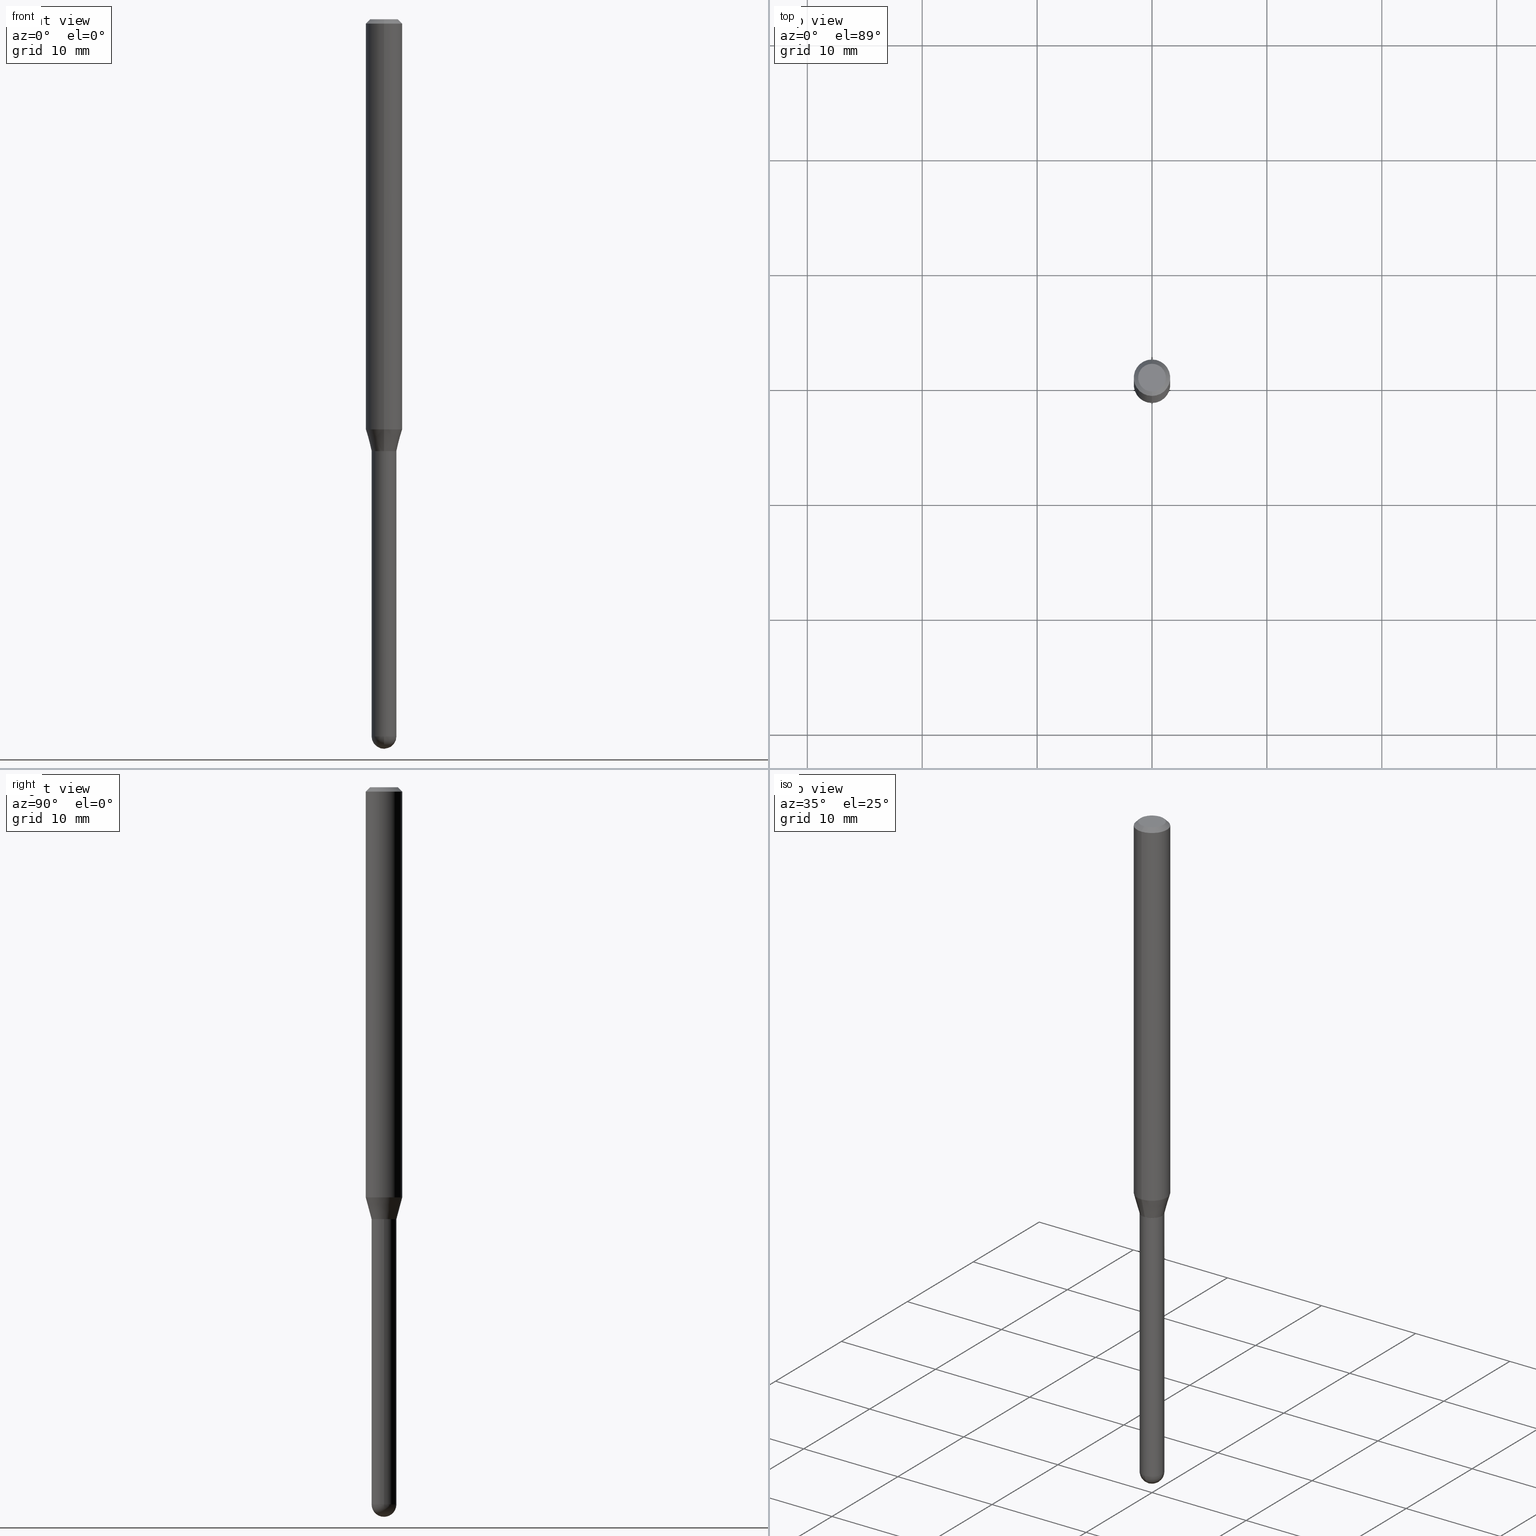
[diagram: canonical four-view strip — front | top / right | iso, engineering-drawing reading convention]
A machine part, canonical four-view strip (front | top / right | iso — engineering-drawing reading convention). The complete STEP part file that produces these views, byte-faithful:
ISO-10303-21;
HEADER;
FILE_DESCRIPTION (( 'STEP AP203' ),
    '1' );
FILE_NAME ('01574.STEP',
    '2024-03-07T19:41:08',
    ( '' ),
    ( '' ),
    'SwSTEP 2.0',
    'SolidWorks 2023',
    '' );
FILE_SCHEMA (( 'CONFIG_CONTROL_DESIGN' ));
ENDSEC;

DATA;
#1 = CALENDAR_DATE ( 2024, 7, 3 ) ;
#2 = EDGE_CURVE ( 'NONE', #276, #94, #167, .T. ) ;
#3 = DIRECTION ( 'NONE',  ( 2.445364733956634770E-29, -3.491630376197783750E-15, -1.000000000000000000 ) ) ;
#4 = EDGE_LOOP ( 'NONE', ( #482, #415, #421, #141 ) ) ;
#5 = CARTESIAN_POINT ( 'NONE',  ( -4.364351673553912750E-16, -0.06250000000000005551, -0.01499999999999979128 ) ) ;
#6 = EDGE_CURVE ( 'NONE', #419, #46, #57, .T. ) ;
#7 = AXIS2_PLACEMENT_3D ( 'NONE', #306, #487, #453 ) ;
#8 = CARTESIAN_POINT ( 'NONE',  ( 6.111854787098336202E-29, -8.731305721556052844E-15, -2.500000000000000000 ) ) ;
#9 = CARTESIAN_POINT ( 'NONE',  ( 0.04250000000000000999, -2.967759138016664042E-16, 2.072375129713273202E-30 ) ) ;
#10 = EDGE_CURVE ( 'NONE', #451, #46, #170, .T. ) ;
#11 = DIRECTION ( 'NONE',  ( -2.445468806185136597E-29, 3.491481338843145583E-15, 1.000000000000000000 ) ) ;
#12 = ORIENTED_EDGE ( 'NONE', *, *, #316, .T. ) ;
#13 = DIRECTION ( 'NONE',  ( -6.982962677686265922E-15, -1.000000000000000000, 6.504399984914913214E-15 ) ) ;
#14 = CIRCLE ( 'NONE', #232, 0.04249999999999964917 ) ;
#15 = FACE_OUTER_BOUND ( 'NONE', #228, .T. ) ;
#16 = EDGE_CURVE ( 'NONE', #396, #94, #508, .T. ) ;
#17 = ORIENTED_EDGE ( 'NONE', *, *, #10, .T. ) ;
#18 = PLANE ( 'NONE',  #275 ) ;
#19 = PRODUCT_DEFINITION_SHAPE ( 'NONE', 'NONE',  #384 ) ;
#20 = ORIENTED_EDGE ( 'NONE', *, *, #109, .T. ) ;
#21 = DIRECTION ( 'NONE',  ( 6.982962677686265922E-15, 1.000000000000000000, -6.427877632151214487E-15 ) ) ;
#22 = VECTOR ( 'NONE', #162, 39.37007874015748143 ) ;
#23 = AXIS2_PLACEMENT_3D ( 'NONE', #286, #474, #74 ) ;
#24 = ORIENTED_EDGE ( 'NONE', *, *, #55, .T. ) ;
#25 = APPROVAL_STATUS ( 'not_yet_approved' ) ;
#26 = EDGE_CURVE ( 'NONE', #370, #276, #463, .T. ) ;
#27 = EDGE_CURVE ( 'NONE', #419, #148, #91, .T. ) ;
#28 = ORIENTED_EDGE ( 'NONE', *, *, #259, .F. ) ;
#29 = FACE_OUTER_BOUND ( 'NONE', #49, .T. ) ;
#30 = ORIENTED_EDGE ( 'NONE', *, *, #134, .T. ) ;
#31 = CARTESIAN_POINT ( 'NONE',  ( 2.984279490192782363E-16, 0.04199999999999483313, -1.480000000000000648 ) ) ;
#32 = AXIS2_PLACEMENT_3D ( 'NONE', #344, #146, #312 ) ;
#33 = CIRCLE ( 'NONE', #144, 0.04250000000000000999 ) ;
#34 = FACE_OUTER_BOUND ( 'NONE', #345, .T. ) ;
#35 = CARTESIAN_POINT ( 'NONE',  ( 3.619293833154002365E-29, -5.167392381487854879E-15, -1.479999999999999982 ) ) ;
#36 = DIRECTION ( 'NONE',  ( -6.982962677686265922E-15, -1.000000000000000000, 3.491630376197783355E-15 ) ) ;
#37 = CARTESIAN_POINT ( 'NONE',  ( 3.730349362740885756E-16, 0.04249999999999504174, -1.480000000000000426 ) ) ;
#38 = COORDINATED_UNIVERSAL_TIME_OFFSET ( 5, 0, .BEHIND. ) ;
#39 = ORIENTED_EDGE ( 'NONE', *, *, #16, .F. ) ;
#40 = CIRCLE ( 'NONE', #196, 0.06250000000000000000 ) ;
#41 = LOCAL_TIME ( 14, 41, 8.000000000000000000, #468 ) ;
#42 = CARTESIAN_POINT ( 'NONE',  ( 3.019806626980419597E-16, 0.04249999999999991979, -1.483942909884055372E-16 ) ) ;
#43 = DIRECTION ( 'NONE',  ( -2.445468806185136597E-29, 3.491481338843145583E-15, 1.000000000000000000 ) ) ;
#44 = DIRECTION ( 'NONE',  ( -2.445364733956634770E-29, 3.491630376197783750E-15, 1.000000000000000000 ) ) ;
#45 = CARTESIAN_POINT ( 'NONE',  ( 3.668047100934954362E-31, -5.237445564296678780E-17, -0.01500000000000000812 ) ) ;
#46 = VERTEX_POINT ( 'NONE', #110 ) ;
#47 = VECTOR ( 'NONE', #447, 39.37007874015748143 ) ;
#48 = FACE_OUTER_BOUND ( 'NONE', #98, .T. ) ;
#49 = EDGE_LOOP ( 'NONE', ( #83, #188 ) ) ;
#50 = DIRECTION ( 'NONE',  ( 2.438088387897960049E-29, -3.491481338843145188E-15, -1.000000000000000000 ) ) ;
#51 = CARTESIAN_POINT ( 'NONE',  ( 3.840629472727447874E-16, 0.04749999999999999362, -1.747056831868805136E-16 ) ) ;
#52 = ORIENTED_EDGE ( 'NONE', *, *, #10, .F. ) ;
#53 = ORIENTED_EDGE ( 'NONE', *, *, #273, .T. ) ;
#54 = DIRECTION ( 'NONE',  ( -2.445364733956634770E-29, 3.491630376197783750E-15, 1.000000000000000000 ) ) ;
#55 = EDGE_CURVE ( 'NONE', #148, #189, #272, .T. ) ;
#56 = CONICAL_SURFACE ( 'NONE', #223, 0.06250000000000000000, 0.7853981633974483900 ) ;
#57 = LINE ( 'NONE', #456, #426 ) ;
#58 = ORIENTED_EDGE ( 'NONE', *, *, #316, .F. ) ;
#59 = FACE_OUTER_BOUND ( 'NONE', #4, .T. ) ;
#60 = ORIENTED_EDGE ( 'NONE', *, *, #318, .F. ) ;
#61 = APPLICATION_PROTOCOL_DEFINITION ( 'international standard', 'config_control_design', 1994, #428 ) ;
#62 = PERSON ( 'UNSPECIFIED', 'UNSPECIFIED', 'UNSPECIFIED', ('UNSPECIFIED'), ('UNSPECIFIED'), ('UNSPECIFIED') ) ;
#63 = AXIS2_PLACEMENT_3D ( 'NONE', #363, #119, #365 ) ;
#64 = ORIENTED_EDGE ( 'NONE', *, *, #208, .T. ) ;
#65 = ORIENTED_EDGE ( 'NONE', *, *, #2, .T. ) ;
#66 = DATE_AND_TIME ( #351, #294 ) ;
#67 = CARTESIAN_POINT ( 'NONE',  ( 6.006105134470961845E-29, -8.585520139103407419E-15, -2.457500000000000018 ) ) ;
#68 = CC_DESIGN_PERSON_AND_ORGANIZATION_ASSIGNMENT ( #236, #387, ( #384 ) ) ;
#69 = PERSON_AND_ORGANIZATION ( #62, #393 ) ;
#70 = CIRCLE ( 'NONE', #494, 0.04249999999999995448 ) ;
#71 = PERSON_AND_ORGANIZATION ( #62, #393 ) ;
#72 = FACE_OUTER_BOUND ( 'NONE', #117, .T. ) ;
#73 = CARTESIAN_POINT ( 'NONE',  ( 0.04250000000000000999, -7.170629799649109504E-15, -2.457500000000000018 ) ) ;
#74 = DIRECTION ( 'NONE',  ( -6.982962677686265922E-15, -1.000000000000000000, 3.483106191921935554E-15 ) ) ;
#75 = APPROVAL ( #323, 'UNSPECIFIED' ) ;
#76 = CARTESIAN_POINT ( 'NONE',  ( 3.619139806255819325E-29, -5.167612956772719382E-15, -1.479999999999999982 ) ) ;
#77 = CARTESIAN_POINT ( 'NONE',  ( 3.668047100934954362E-31, -5.237445564296678780E-17, -0.01500000000000000812 ) ) ;
#78 = DIRECTION ( 'NONE',  ( -2.445364733956634770E-29, 3.491630376197783750E-15, 1.000000000000000000 ) ) ;
#79 = DIRECTION ( 'NONE',  ( -2.445364733956634770E-29, 3.491630376197783750E-15, 1.000000000000000000 ) ) ;
#80 = CALENDAR_DATE ( 2024, 7, 3 ) ;
#81 = VECTOR ( 'NONE', #131, 39.37007874015748143 ) ;
#82 = CARTESIAN_POINT ( 'NONE',  ( 0.000000000000000000, 0.000000000000000000, 0.000000000000000000 ) ) ;
#83 = ORIENTED_EDGE ( 'NONE', *, *, #27, .T. ) ;
#84 = DIRECTION ( 'NONE',  ( -2.445468806185136597E-29, 3.491481338843145583E-15, 1.000000000000000000 ) ) ;
#85 = PERSON_AND_ORGANIZATION ( #62, #393 ) ;
#86 = DIRECTION ( 'NONE',  ( -1.000000000000000000, 7.105427357601001070E-15, -4.926315508542082329E-29 ) ) ;
#87 = ORIENTED_EDGE ( 'NONE', *, *, #366, .T. ) ;
#88 = EDGE_CURVE ( 'NONE', #420, #95, #198, .T. ) ;
#89 = ORIENTED_EDGE ( 'NONE', *, *, #354, .F. ) ;
#90 = FACE_OUTER_BOUND ( 'NONE', #191, .T. ) ;
#91 = CIRCLE ( 'NONE', #32, 0.04749999999999999362 ) ;
#92 = AXIS2_PLACEMENT_3D ( 'NONE', #174, #249, #476 ) ;
#93 = CARTESIAN_POINT ( 'NONE',  ( -4.364351673553916201E-16, -0.06250000000000000000, 2.182268985123614597E-16 ) ) ;
#94 = VERTEX_POINT ( 'NONE', #322 ) ;
#95 = VERTEX_POINT ( 'NONE', #441 ) ;
#96 = CARTESIAN_POINT ( 'NONE',  ( 2.164940165362278227E-46, -3.091224282031228176E-32, -8.853240317485787804E-18 ) ) ;
#97 = ADVANCED_FACE ( 'NONE', ( #204 ), #427, .F. ) ;
#98 = EDGE_LOOP ( 'NONE', ( #147, #20 ) ) ;
#99 = DIRECTION ( 'NONE',  ( -2.445364733956634770E-29, 3.491630376197783750E-15, 1.000000000000000000 ) ) ;
#100 = DIRECTION ( 'NONE',  ( -2.445468806185136877E-29, 3.491481338843145188E-15, 1.000000000000000000 ) ) ;
#101 = ORIENTED_EDGE ( 'NONE', *, *, #262, .T. ) ;
#102 = LINE ( 'NONE', #93, #485 ) ;
#103 = CLOSED_SHELL ( 'NONE', ( #317, #150, #356, #466, #390 ) ) ;
#104 = CIRCLE ( 'NONE', #7, 0.04250000000000000999 ) ;
#105 = DIRECTION ( 'NONE',  ( -1.000000000000000000, 6.982962677686265922E-15, -4.883557194083112901E-29 ) ) ;
#106 = PRODUCT ( '01574', '01574', '', ( #347 ) ) ;
#107 = ORIENTED_EDGE ( 'NONE', *, *, #318, .T. ) ;
#108 = ORIENTED_EDGE ( 'NONE', *, *, #437, .T. ) ;
#109 = EDGE_CURVE ( 'NONE', #94, #396, #123, .T. ) ;
#110 = CARTESIAN_POINT ( 'NONE',  ( 4.440892098500972274E-16, 0.06249999999999995143, -0.01500000000000022669 ) ) ;
#111 = AXIS2_PLACEMENT_3D ( 'NONE', #209, #394, #36 ) ;
#112 = DIRECTION ( 'NONE',  ( 2.445364733956634490E-29, -3.491630376197783355E-15, -1.000000000000000000 ) ) ;
#113 = APPROVAL_STATUS ( 'not_yet_approved' ) ;
#114 = ORIENTED_EDGE ( 'NONE', *, *, #288, .T. ) ;
#115 = CARTESIAN_POINT ( 'NONE',  ( 3.619139806255819325E-29, -5.167612956772719382E-15, -1.479999999999999982 ) ) ;
#116 = CONICAL_SURFACE ( 'NONE', #186, 0.04199999999999999567, 0.7853981633969275844 ) ;
#117 = EDGE_LOOP ( 'NONE', ( #52, #222, #307, #28 ) ) ;
#118 = PERSON_AND_ORGANIZATION ( #62, #393 ) ;
#119 = DIRECTION ( 'NONE',  ( -1.000000000000000000, 6.982962677686265922E-15, -4.883557194083112901E-29 ) ) ;
#120 = PLANE ( 'NONE',  #434 ) ;
#121 = ADVANCED_FACE ( 'NONE', ( #383 ), #161, .T. ) ;
#122 = DIRECTION ( 'NONE',  ( 6.982962677686265922E-15, 1.000000000000000000, -3.483106191921935554E-15 ) ) ;
#123 = CIRCLE ( 'NONE', #151, 0.04249999999999999611 ) ;
#124 = AXIS2_PLACEMENT_3D ( 'NONE', #242, #168, #200 ) ;
#125 = CALENDAR_DATE ( 2024, 7, 3 ) ;
#126 = DIRECTION ( 'NONE',  ( -6.982962677686265922E-15, -1.000000000000000000, 6.504399984914913214E-15 ) ) ;
#127 = CARTESIAN_POINT ( 'NONE',  ( 6.009739591199973545E-29, -8.580315390207031617E-15, -2.457500000000000018 ) ) ;
#128 = LINE ( 'NONE', #338, #248 ) ;
#129 = EDGE_LOOP ( 'NONE', ( #488, #17, #381, #511 ) ) ;
#130 = ADVANCED_FACE ( 'NONE', ( #247 ), #299, .T. ) ;
#131 = DIRECTION ( 'NONE',  ( -2.445468806185136877E-29, 3.491481338843145188E-15, 1.000000000000000000 ) ) ;
#132 =( GEOMETRIC_REPRESENTATION_CONTEXT ( 3 ) GLOBAL_UNCERTAINTY_ASSIGNED_CONTEXT ( ( #439 ) ) GLOBAL_UNIT_ASSIGNED_CONTEXT ( ( #277, #465, #238 ) ) REPRESENTATION_CONTEXT ( 'NONE', 'WORKASPACE' ) );
#133 = CARTESIAN_POINT ( 'NONE',  ( 3.619139806255819885E-29, -5.167612956772720959E-15, -1.480000000000000426 ) ) ;
#134 = EDGE_CURVE ( 'NONE', #305, #214, #326, .T. ) ;
#135 = DIRECTION ( 'NONE',  ( -2.445468806185136597E-29, 3.491481338843145583E-15, 1.000000000000000000 ) ) ;
#136 = EDGE_LOOP ( 'NONE', ( #64, #53, #490, #225 ) ) ;
#137 = EDGE_LOOP ( 'NONE', ( #220, #89 ) ) ;
#138 = DIRECTION ( 'NONE',  ( -2.445468806185136597E-29, 3.491481338843145583E-15, 1.000000000000000000 ) ) ;
#139 = ORIENTED_EDGE ( 'NONE', *, *, #6, .T. ) ;
#140 = ORIENTED_EDGE ( 'NONE', *, *, #2, .F. ) ;
#141 = ORIENTED_EDGE ( 'NONE', *, *, #373, .F. ) ;
#142 = DIRECTION ( 'NONE',  ( -6.982962677686265922E-15, -1.000000000000000000, 6.504399984914913214E-15 ) ) ;
#143 = AXIS2_PLACEMENT_3D ( 'NONE', #398, #287, #282 ) ;
#144 = AXIS2_PLACEMENT_3D ( 'NONE', #491, #138, #179 ) ;
#145 = VERTEX_POINT ( 'NONE', #73 ) ;
#146 = DIRECTION ( 'NONE',  ( -2.445364733956634770E-29, 3.491630376197783750E-15, 1.000000000000000000 ) ) ;
#147 = ORIENTED_EDGE ( 'NONE', *, *, #16, .T. ) ;
#148 = VERTEX_POINT ( 'NONE', #395 ) ;
#149 = LENGTH_MEASURE_WITH_UNIT ( LENGTH_MEASURE( 0.02539999999999999897 ), #185 );
#150 = ADVANCED_FACE ( 'NONE', ( #244 ), #507, .T. ) ;
#151 = AXIS2_PLACEMENT_3D ( 'NONE', #35, #159, #199 ) ;
#152 = AXIS2_PLACEMENT_3D ( 'NONE', #327, #290, #126 ) ;
#153 = CC_DESIGN_APPROVAL ( #339, ( #384 ) ) ;
#154 = COORDINATED_UNIVERSAL_TIME_OFFSET ( 5, 0, .BEHIND. ) ;
#155 = EDGE_CURVE ( 'NONE', #184, #418, #501, .T. ) ;
#156 = SHAPE_DEFINITION_REPRESENTATION ( #19, #376 ) ;
#157 = ADVANCED_FACE ( 'NONE', ( #319 ), #160, .F. ) ;
#158 = MANIFOLD_SOLID_BREP ( 'Body-Move/Copy2[1]', #103 ) ;
#159 = DIRECTION ( 'NONE',  ( -2.445468806185136597E-29, 3.491481338843145583E-15, 1.000000000000000000 ) ) ;
#160 = CYLINDRICAL_SURFACE ( 'NONE', #454, 0.04249999999999991979 ) ;
#161 = CONICAL_SURFACE ( 'NONE', #177, 0.04250000000000020428, 0.2617993877991576235 ) ;
#162 = DIRECTION ( 'NONE',  ( -2.445364733956634490E-29, 3.491630376197783355E-15, 1.000000000000000000 ) ) ;
#163 = FACE_OUTER_BOUND ( 'NONE', #137, .T. ) ;
#164 = DIRECTION ( 'NONE',  ( -6.982962677686265922E-15, -1.000000000000000000, 6.427877632151176622E-15 ) ) ;
#165 = DIRECTION ( 'NONE',  ( -6.982962677686265922E-15, -1.000000000000000000, 3.491630376197783355E-15 ) ) ;
#166 = DIRECTION ( 'NONE',  ( -2.445364733956634490E-29, 3.491630376197783355E-15, 1.000000000000000000 ) ) ;
#167 = LINE ( 'NONE', #477, #195 ) ;
#168 = DIRECTION ( 'NONE',  ( -2.445364733956634770E-29, 3.491630376197783750E-15, 1.000000000000000000 ) ) ;
#169 = CC_DESIGN_PERSON_AND_ORGANIZATION_ASSIGNMENT ( #504, #194, ( #106 ) ) ;
#170 = LINE ( 'NONE', #292, #469 ) ;
#171 = AXIS2_PLACEMENT_3D ( 'NONE', #210, #86, #364 ) ;
#172 = CIRCLE ( 'NONE', #23, 0.06250000000000000000 ) ;
#173 = CC_DESIGN_APPROVAL ( #234, ( #233 ) ) ;
#174 = CARTESIAN_POINT ( 'NONE',  ( 3.619139806255819325E-29, -5.167612956772719382E-15, -1.479999999999999982 ) ) ;
#175 = CARTESIAN_POINT ( 'NONE',  ( -3.019806626979823514E-16, -0.04250000000000855871, -2.457500000000000018 ) ) ;
#176 = CARTESIAN_POINT ( 'NONE',  ( 0.04249999999999999611, -5.464168295289522318E-15, -1.479999999999999982 ) ) ;
#177 = AXIS2_PLACEMENT_3D ( 'NONE', #348, #79, #432 ) ;
#178 = ADVANCED_FACE ( 'NONE', ( #72 ), #403, .T. ) ;
#179 = DIRECTION ( 'NONE',  ( 1.000000000000000000, -6.982962677686273810E-15, 0.000000000000000000 ) ) ;
#180 = VERTEX_POINT ( 'NONE', #251 ) ;
#181 = CARTESIAN_POINT ( 'NONE',  ( 3.619139806255819885E-29, -5.167612956772720959E-15, -1.480000000000000426 ) ) ;
#182 = ORIENTED_EDGE ( 'NONE', *, *, #27, .F. ) ;
#183 = DIRECTION ( 'NONE',  ( -6.982962677686265922E-15, -1.000000000000000000, 3.483106191921935554E-15 ) ) ;
#184 = VERTEX_POINT ( 'NONE', #8 ) ;
#185 =( LENGTH_UNIT ( ) NAMED_UNIT ( * ) SI_UNIT ( $, .METRE. ) );
#186 = AXIS2_PLACEMENT_3D ( 'NONE', #181, #341, #13 ) ;
#187 = APPROVAL_PERSON_ORGANIZATION ( #71, #234, #250 ) ;
#188 = ORIENTED_EDGE ( 'NONE', *, *, #409, .T. ) ;
#189 = VERTEX_POINT ( 'NONE', #5 ) ;
#190 = APPROVAL_ROLE ( '' ) ;
#191 = EDGE_LOOP ( 'NONE', ( #140, #378, #343, #12, #411 ) ) ;
#192 = CALENDAR_DATE ( 2024, 7, 3 ) ;
#193 = ORIENTED_EDGE ( 'NONE', *, *, #431, .F. ) ;
#194 = PERSON_AND_ORGANIZATION_ROLE ( 'design_owner' ) ;
#195 = VECTOR ( 'NONE', #100, 39.37007874015748143 ) ;
#196 = AXIS2_PLACEMENT_3D ( 'NONE', #337, #484, #252 ) ;
#197 = LOCAL_TIME ( 14, 41, 8.000000000000000000, #38 ) ;
#198 = LINE ( 'NONE', #429, #22 ) ;
#199 = DIRECTION ( 'NONE',  ( 1.000000000000000000, -6.982962677686276177E-15, 0.000000000000000000 ) ) ;
#200 = DIRECTION ( 'NONE',  ( -6.982962677686266711E-15, -1.000000000000000000, 6.427877632151260241E-15 ) ) ;
#201 = EDGE_CURVE ( 'NONE', #263, #214, #328, .T. ) ;
#202 = DATE_AND_TIME ( #80, #197 ) ;
#203 = LINE ( 'NONE', #360, #372 ) ;
#204 = FACE_OUTER_BOUND ( 'NONE', #269, .T. ) ;
#205 = CIRCLE ( 'NONE', #152, 0.04199999999999999567 ) ;
#206 = DIRECTION ( 'NONE',  ( -6.982962677686266711E-15, -1.000000000000000000, 3.491630376197783750E-15 ) ) ;
#207 = PERSON_AND_ORGANIZATION_ROLE ( 'classification_officer' ) ;
#208 = EDGE_CURVE ( 'NONE', #420, #263, #392, .T. ) ;
#209 = CARTESIAN_POINT ( 'NONE',  ( 0.000000000000000000, 0.000000000000000000, 0.000000000000000000 ) ) ;
#210 = CARTESIAN_POINT ( 'NONE',  ( 6.006105134470961845E-29, -8.585520139103407419E-15, -2.457500000000000018 ) ) ;
#211 = AXIS2_PLACEMENT_3D ( 'NONE', #460, #391, #142 ) ;
#212 = PRODUCT_DEFINITION_FORMATION_WITH_SPECIFIED_SOURCE ( 'ANY', '', #106, .NOT_KNOWN. ) ;
#213 = DIRECTION ( 'NONE',  ( 1.000000000000000000, -6.982962677686266711E-15, 4.876176775795935793E-29 ) ) ;
#214 = VERTEX_POINT ( 'NONE', #472 ) ;
#215 = CARTESIAN_POINT ( 'NONE',  ( 6.009739591199973545E-29, -8.580315390207031617E-15, -2.457500000000000018 ) ) ;
#216 = PRODUCT_RELATED_PRODUCT_CATEGORY ( 'detail', '', ( #106 ) ) ;
#217 = ORIENTED_EDGE ( 'NONE', *, *, #333, .T. ) ;
#218 = EDGE_LOOP ( 'NONE', ( #257, #24, #87, #340 ) ) ;
#219 = CARTESIAN_POINT ( 'NONE',  ( 0.000000000000000000, 0.000000000000000000, 0.000000000000000000 ) ) ;
#220 = ORIENTED_EDGE ( 'NONE', *, *, #288, .F. ) ;
#221 = CIRCLE ( 'NONE', #502, 0.04199999999999999567 ) ;
#222 = ORIENTED_EDGE ( 'NONE', *, *, #497, .T. ) ;
#223 = AXIS2_PLACEMENT_3D ( 'NONE', #77, #3, #430 ) ;
#224 = CARTESIAN_POINT ( 'NONE',  ( 2.967759138017263083E-16, 0.04249999999999140576, -2.457500000000000462 ) ) ;
#225 = ORIENTED_EDGE ( 'NONE', *, *, #333, .F. ) ;
#226 = DIRECTION ( 'NONE',  ( 1.000000000000000000, -6.982962677686266711E-15, 4.876176775795935793E-29 ) ) ;
#227 = EDGE_CURVE ( 'NONE', #214, #95, #300, .T. ) ;
#228 = EDGE_LOOP ( 'NONE', ( #304, #254, #442, #416 ) ) ;
#229 = EDGE_LOOP ( 'NONE', ( #452, #65, #39, #58, #108 ) ) ;
#230 = EDGE_LOOP ( 'NONE', ( #459, #353, #193, #350 ) ) ;
#231 = CARTESIAN_POINT ( 'NONE',  ( 3.436615297652560978E-29, -4.906994117468312380E-15, -1.405358983848625787 ) ) ;
#232 = AXIS2_PLACEMENT_3D ( 'NONE', #443, #450, #335 ) ;
#233 = SECURITY_CLASSIFICATION ( '', '', #400 ) ;
#234 = APPROVAL ( #113, 'UNSPECIFIED' ) ;
#235 = ADVANCED_FACE ( 'NONE', ( #283 ), #253, .T. ) ;
#236 = PERSON_AND_ORGANIZATION ( #62, #393 ) ;
#237 = ADVANCED_FACE ( 'NONE', ( #332 ), #56, .T. ) ;
#238 =( NAMED_UNIT ( * ) SI_UNIT ( $, .STERADIAN. ) SOLID_ANGLE_UNIT ( ) );
#239 = AXIS2_PLACEMENT_3D ( 'NONE', #115, #397, #281 ) ;
#240 = DATE_AND_TIME ( #1, #321 ) ;
#241 = CARTESIAN_POINT ( 'NONE',  ( 0.000000000000000000, 0.000000000000000000, 0.000000000000000000 ) ) ;
#242 = CARTESIAN_POINT ( 'NONE',  ( 3.617917123888841333E-29, -5.165867141584622162E-15, -1.479500000000000259 ) ) ;
#243 = DIMENSIONAL_EXPONENTS ( 1.000000000000000000, 0.000000000000000000, 0.000000000000000000, 0.000000000000000000, 0.000000000000000000, 0.000000000000000000, 0.000000000000000000 ) ;
#244 = FACE_OUTER_BOUND ( 'NONE', #230, .T. ) ;
#245 = VECTOR ( 'NONE', #404, 39.37007874015748143 ) ;
#246 = CARTESIAN_POINT ( 'NONE',  ( 3.619293833154002365E-29, -5.167392381487854879E-15, -1.479999999999999982 ) ) ;
#247 = FACE_OUTER_BOUND ( 'NONE', #136, .T. ) ;
#248 = VECTOR ( 'NONE', #255, 39.37007874015748143 ) ;
#249 = DIRECTION ( 'NONE',  ( -2.445364733956634770E-29, 3.491630376197783750E-15, 1.000000000000000000 ) ) ;
#250 = APPROVAL_ROLE ( '' ) ;
#251 = CARTESIAN_POINT ( 'NONE',  ( -4.364351673553569595E-16, -0.06250000000000487110, -1.405358983848625565 ) ) ;
#252 = DIRECTION ( 'NONE',  ( -6.982962677686265922E-15, -1.000000000000000000, 4.370956789862821150E-15 ) ) ;
#253 = CONICAL_SURFACE ( 'NONE', #436, 0.06250000000000000000, 0.7853981633974483900 ) ;
#254 = ORIENTED_EDGE ( 'NONE', *, *, #354, .T. ) ;
#255 = DIRECTION ( 'NONE',  ( -1.807323732225379838E-15, -0.2588190451025252914, 0.9659258262890670910 ) ) ;
#256 = CC_DESIGN_DATE_AND_TIME_ASSIGNMENT ( #202, #473, ( #233 ) ) ;
#257 = ORIENTED_EDGE ( 'NONE', *, *, #409, .F. ) ;
#258 = DIRECTION ( 'NONE',  ( -2.445364733956634490E-29, 3.491630376197783355E-15, 1.000000000000000000 ) ) ;
#259 = EDGE_CURVE ( 'NONE', #46, #189, #172, .T. ) ;
#260 = CYLINDRICAL_SURFACE ( 'NONE', #320, 0.04250000000000000999 ) ;
#261 = AXIS2_PLACEMENT_3D ( 'NONE', #127, #43, #496 ) ;
#262 = EDGE_CURVE ( 'NONE', #263, #420, #455, .T. ) ;
#263 = VERTEX_POINT ( 'NONE', #37 ) ;
#264 = AXIS2_PLACEMENT_3D ( 'NONE', #408, #99, #183 ) ;
#265 = LOCAL_TIME ( 14, 41, 8.000000000000000000, #467 ) ;
#266 = CARTESIAN_POINT ( 'NONE',  ( -2.932844324627869123E-16, -0.04200000000000516515, -1.479999999999999982 ) ) ;
#267 = ORIENTED_EDGE ( 'NONE', *, *, #273, .F. ) ;
#268 = DIRECTION ( 'NONE',  ( 4.937700262164548042E-15, 0.7071067811865451302, -0.7071067811865499042 ) ) ;
#269 = EDGE_LOOP ( 'NONE', ( #377, #270, #449, #107 ) ) ;
#270 = ORIENTED_EDGE ( 'NONE', *, *, #208, .F. ) ;
#271 = APPLICATION_PROTOCOL_DEFINITION ( 'international standard', 'config_control_design', 1994, #489 ) ;
#272 = LINE ( 'NONE', #285, #444 ) ;
#273 = EDGE_CURVE ( 'NONE', #263, #451, #203, .T. ) ;
#274 = DIRECTION ( 'NONE',  ( 0.000000000000000000, 0.000000000000000000, 1.000000000000000000 ) ) ;
#275 = AXIS2_PLACEMENT_3D ( 'NONE', #296, #50, #483 ) ;
#276 = VERTEX_POINT ( 'NONE', #325 ) ;
#277 =( CONVERSION_BASED_UNIT ( 'INCH', #149 ) LENGTH_UNIT ( ) NAMED_UNIT ( #243 ) );
#278 = DATE_AND_TIME ( #192, #265 ) ;
#279 = CC_DESIGN_PERSON_AND_ORGANIZATION_ASSIGNMENT ( #118, #358, ( #212 ) ) ;
#280 = DIRECTION ( 'NONE',  ( -4.851104656540964275E-15, -0.7071067811865500152, -0.7071067811865450192 ) ) ;
#281 = DIRECTION ( 'NONE',  ( -6.982962677686265922E-15, -1.000000000000000000, 6.427877632151176622E-15 ) ) ;
#282 = DIRECTION ( 'NONE',  ( -6.982962677686266711E-15, -1.000000000000000000, 3.491630376197783750E-15 ) ) ;
#283 = FACE_OUTER_BOUND ( 'NONE', #218, .T. ) ;
#284 = ADVANCED_FACE ( 'NONE', ( #163 ), #120, .F. ) ;
#285 = CARTESIAN_POINT ( 'NONE',  ( -4.287811248607203282E-16, -0.06250000000000005551, -0.01499999999999979128 ) ) ;
#286 = CARTESIAN_POINT ( 'NONE',  ( 3.668047100934954362E-31, -5.237445564296678780E-17, -0.01500000000000000812 ) ) ;
#287 = DIRECTION ( 'NONE',  ( -2.445364733956634770E-29, 3.491630376197783750E-15, 1.000000000000000000 ) ) ;
#288 = EDGE_CURVE ( 'NONE', #446, #305, #205, .T. ) ;
#289 = PERSON_AND_ORGANIZATION ( #62, #393 ) ;
#290 = DIRECTION ( 'NONE',  ( -2.445364733956634770E-29, 3.491630376197783750E-15, 1.000000000000000000 ) ) ;
#291 = CIRCLE ( 'NONE', #264, 0.06250000000000000000 ) ;
#292 = CARTESIAN_POINT ( 'NONE',  ( 4.440892098500625669E-16, 0.06250000000000000000, -2.182268985123614597E-16 ) ) ;
#293 = CC_DESIGN_APPROVAL ( #75, ( #212 ) ) ;
#294 = LOCAL_TIME ( 14, 41, 8.000000000000000000, #154 ) ;
#295 = CYLINDRICAL_SURFACE ( 'NONE', #414, 0.06250000000000000000 ) ;
#296 = CARTESIAN_POINT ( 'NONE',  ( 2.967759138017024946E-16, 0.04249999999999483358, -1.480000000000000426 ) ) ;
#297 = ADVANCED_FACE ( 'NONE', ( #435 ), #295, .T. ) ;
#298 = LINE ( 'NONE', #9, #81 ) ;
#299 = CONICAL_SURFACE ( 'NONE', #329, 0.04250000000000020428, 0.2617993877991576235 ) ;
#300 = CIRCLE ( 'NONE', #124, 0.04249999999999964917 ) ;
#301 = ORIENTED_EDGE ( 'NONE', *, *, #227, .T. ) ;
#302 = CARTESIAN_POINT ( 'NONE',  ( 3.002043058586776009E-16, 0.04199999999999483313, -1.480000000000000648 ) ) ;
#303 = CARTESIAN_POINT ( 'NONE',  ( 0.000000000000000000, 0.000000000000000000, 0.000000000000000000 ) ) ;
#304 = ORIENTED_EDGE ( 'NONE', *, *, #134, .F. ) ;
#305 = VERTEX_POINT ( 'NONE', #302 ) ;
#306 = CARTESIAN_POINT ( 'NONE',  ( 6.009739591199973545E-29, -8.580315390207031617E-15, -2.457500000000000018 ) ) ;
#307 = ORIENTED_EDGE ( 'NONE', *, *, #324, .T. ) ;
#308 = AXIS2_PLACEMENT_3D ( 'NONE', #215, #481, #374 ) ;
#309 = ORIENTED_EDGE ( 'NONE', *, *, #259, .T. ) ;
#310 = DIRECTION ( 'NONE',  ( -6.982962677686265922E-15, -1.000000000000000000, 4.370956789862821150E-15 ) ) ;
#311 = DIRECTION ( 'NONE',  ( 6.982962677686266711E-15, 1.000000000000000000, 0.000000000000000000 ) ) ;
#312 = DIRECTION ( 'NONE',  ( -6.982962677686266711E-15, -1.000000000000000000, 3.491630376197784144E-15 ) ) ;
#313 = SPHERICAL_SURFACE ( 'NONE', #330, 0.04249999999999995448 ) ;
#314 = AXIS2_PLACEMENT_3D ( 'NONE', #389, #274, #422 ) ;
#315 = APPROVAL_DATE_TIME ( #66, #339 ) ;
#316 = EDGE_CURVE ( 'NONE', #145, #396, #298, .T. ) ;
#317 = ADVANCED_FACE ( 'NONE', ( #379 ), #260, .T. ) ;
#318 = EDGE_CURVE ( 'NONE', #95, #214, #14, .T. ) ;
#319 = FACE_OUTER_BOUND ( 'NONE', #352, .T. ) ;
#320 = AXIS2_PLACEMENT_3D ( 'NONE', #303, #135, #213 ) ;
#321 = LOCAL_TIME ( 14, 41, 8.000000000000000000, #475 ) ;
#322 = CARTESIAN_POINT ( 'NONE',  ( -0.04249999999999999611, -6.571873223149400401E-15, -1.479999999999999982 ) ) ;
#323 = APPROVAL_STATUS ( 'not_yet_approved' ) ;
#324 = EDGE_CURVE ( 'NONE', #180, #189, #102, .T. ) ;
#325 = CARTESIAN_POINT ( 'NONE',  ( -0.04250000000000000999, -6.571873223149400401E-15, -2.457500000000000018 ) ) ;
#326 = LINE ( 'NONE', #31, #385 ) ;
#327 = CARTESIAN_POINT ( 'NONE',  ( 3.619139806255819885E-29, -5.167612956772720959E-15, -1.480000000000000426 ) ) ;
#328 = LINE ( 'NONE', #42, #245 ) ;
#329 = AXIS2_PLACEMENT_3D ( 'NONE', #76, #78, #164 ) ;
#330 = AXIS2_PLACEMENT_3D ( 'NONE', #493, #105, #21 ) ;
#331 = DIRECTION ( 'NONE',  ( 1.000000000000000000, -6.982962677686276177E-15, 0.000000000000000000 ) ) ;
#332 = FACE_OUTER_BOUND ( 'NONE', #334, .T. ) ;
#333 = EDGE_CURVE ( 'NONE', #420, #180, #128, .T. ) ;
#334 = EDGE_LOOP ( 'NONE', ( #458, #182, #139, #309 ) ) ;
#335 = DIRECTION ( 'NONE',  ( -6.982962677686266711E-15, -1.000000000000000000, 6.427877632151260241E-15 ) ) ;
#336 = MANIFOLD_SOLID_BREP ( 'Body-Move/Copy2[2]', #406 ) ;
#337 = CARTESIAN_POINT ( 'NONE',  ( 3.436615297652560978E-29, -4.906994117468312380E-15, -1.405358983848625787 ) ) ;
#338 = CARTESIAN_POINT ( 'NONE',  ( -2.967759138016315464E-16, -0.04250000000000536682, -1.479999999999999760 ) ) ;
#339 = APPROVAL ( #25, 'UNSPECIFIED' ) ;
#340 = ORIENTED_EDGE ( 'NONE', *, *, #6, .F. ) ;
#341 = DIRECTION ( 'NONE',  ( -2.445364733956634770E-29, 3.491630376197783750E-15, 1.000000000000000000 ) ) ;
#342 = ORIENTED_EDGE ( 'NONE', *, *, #375, .F. ) ;
#343 = ORIENTED_EDGE ( 'NONE', *, *, #373, .T. ) ;
#344 = CARTESIAN_POINT ( 'NONE',  ( 2.164940165362278227E-46, -3.091224282031228176E-32, -8.853240317485787804E-18 ) ) ;
#345 = EDGE_LOOP ( 'NONE', ( #114, #30, #60, #342 ) ) ;
#346 = AXIS2_PLACEMENT_3D ( 'NONE', #219, #11, #226 ) ;
#347 = MECHANICAL_CONTEXT ( 'NONE', #489, 'mechanical' ) ;
#348 = CARTESIAN_POINT ( 'NONE',  ( 3.619139806255819325E-29, -5.167612956772719382E-15, -1.479999999999999982 ) ) ;
#349 = CC_DESIGN_PERSON_AND_ORGANIZATION_ASSIGNMENT ( #85, #506, ( #212 ) ) ;
#350 = ORIENTED_EDGE ( 'NONE', *, *, #26, .F. ) ;
#351 = CALENDAR_DATE ( 2024, 7, 3 ) ;
#352 = EDGE_LOOP ( 'NONE', ( #380, #486, #301, #402 ) ) ;
#353 = ORIENTED_EDGE ( 'NONE', *, *, #155, .T. ) ;
#354 = EDGE_CURVE ( 'NONE', #305, #446, #221, .T. ) ;
#355 = APPROVAL_ROLE ( '' ) ;
#356 = ADVANCED_FACE ( 'NONE', ( #48 ), #18, .F. ) ;
#357 = DIRECTION ( 'NONE',  ( 5.024295867785445738E-15, 0.7071067811861817543, 0.7071067811869132802 ) ) ;
#358 = PERSON_AND_ORGANIZATION_ROLE ( 'design_supplier' ) ;
#359 = DIRECTION ( 'NONE',  ( 2.445364733956634770E-29, -3.491630376197783750E-15, -1.000000000000000000 ) ) ;
#360 = CARTESIAN_POINT ( 'NONE',  ( 3.019806626980801702E-16, 0.04249999999999504174, -1.480000000000000426 ) ) ;
#361 = APPROVAL_PERSON_ORGANIZATION ( #69, #339, #190 ) ;
#362 = APPROVAL_DATE_TIME ( #240, #234 ) ;
#363 = CARTESIAN_POINT ( 'NONE',  ( 6.006105134470961845E-29, -8.585520139103407419E-15, -2.457500000000000018 ) ) ;
#364 = DIRECTION ( 'NONE',  ( -7.105427357601001070E-15, -1.000000000000000000, 0.000000000000000000 ) ) ;
#365 = DIRECTION ( 'NONE',  ( 6.982962677686265922E-15, 1.000000000000000000, -6.427877632151214487E-15 ) ) ;
#366 = EDGE_CURVE ( 'NONE', #189, #46, #291, .T. ) ;
#367 = CONICAL_SURFACE ( 'NONE', #211, 0.04199999999999999567, 0.7853981633969275844 ) ;
#368 = CYLINDRICAL_SURFACE ( 'NONE', #346, 0.04250000000000000999 ) ;
#369 = LINE ( 'NONE', #440, #47 ) ;
#370 = VERTEX_POINT ( 'NONE', #224 ) ;
#371 = CARTESIAN_POINT ( 'NONE',  ( -2.967759138016315464E-16, -0.04250000000000536682, -1.479999999999999760 ) ) ;
#372 = VECTOR ( 'NONE', #512, 39.37007874015748854 ) ;
#373 = EDGE_CURVE ( 'NONE', #418, #145, #445, .T. ) ;
#374 = DIRECTION ( 'NONE',  ( 1.000000000000000000, -6.982962677686273810E-15, 0.000000000000000000 ) ) ;
#375 = EDGE_CURVE ( 'NONE', #446, #95, #369, .T. ) ;
#376 = ADVANCED_BREP_SHAPE_REPRESENTATION ( '01574', ( #158, #336, #314 ), #132 ) ;
#377 = ORIENTED_EDGE ( 'NONE', *, *, #201, .F. ) ;
#378 = ORIENTED_EDGE ( 'NONE', *, *, #431, .T. ) ;
#379 = FACE_OUTER_BOUND ( 'NONE', #229, .T. ) ;
#380 = ORIENTED_EDGE ( 'NONE', *, *, #262, .F. ) ;
#381 = ORIENTED_EDGE ( 'NONE', *, *, #366, .F. ) ;
#382 = DIRECTION ( 'NONE',  ( 1.000000000000000000, -6.982962677686265922E-15, 4.883557194083112340E-29 ) ) ;
#383 = FACE_OUTER_BOUND ( 'NONE', #495, .T. ) ;
#384 = PRODUCT_DEFINITION ( 'UNKNOWN', '', #212, #388 ) ;
#385 = VECTOR ( 'NONE', #357, 39.37007874015748143 ) ;
#386 = AXIS2_PLACEMENT_3D ( 'NONE', #424, #112, #457 ) ;
#387 = PERSON_AND_ORGANIZATION_ROLE ( 'creator' ) ;
#388 = DESIGN_CONTEXT ( 'detailed design', #428, 'design' ) ;
#389 = CARTESIAN_POINT ( 'NONE',  ( 0.000000000000000000, 0.000000000000000000, 0.000000000000000000 ) ) ;
#390 = ADVANCED_FACE ( 'NONE', ( #90 ), #368, .T. ) ;
#391 = DIRECTION ( 'NONE',  ( -2.445364733956634770E-29, 3.491630376197783750E-15, 1.000000000000000000 ) ) ;
#392 = CIRCLE ( 'NONE', #92, 0.04250000000000020428 ) ;
#393 = ORGANIZATION ( 'UNSPECIFIED', 'UNSPECIFIED', '' ) ;
#394 = DIRECTION ( 'NONE',  ( -2.445364733956634770E-29, 3.491630376197783750E-15, 1.000000000000000000 ) ) ;
#395 = CARTESIAN_POINT ( 'NONE',  ( -3.773273898774340269E-16, -0.04749999999999999362, 1.569992025519089534E-16 ) ) ;
#396 = VERTEX_POINT ( 'NONE', #176 ) ;
#397 = DIRECTION ( 'NONE',  ( -2.445364733956634770E-29, 3.491630376197783750E-15, 1.000000000000000000 ) ) ;
#398 = CARTESIAN_POINT ( 'NONE',  ( 0.000000000000000000, 0.000000000000000000, 0.000000000000000000 ) ) ;
#399 = EDGE_CURVE ( 'NONE', #180, #451, #40, .T. ) ;
#400 = SECURITY_CLASSIFICATION_LEVEL ( 'unclassified' ) ;
#401 = DIRECTION ( 'NONE',  ( -2.445364733956634490E-29, 3.491630376197783355E-15, 1.000000000000000000 ) ) ;
#402 = ORIENTED_EDGE ( 'NONE', *, *, #88, .F. ) ;
#403 = CYLINDRICAL_SURFACE ( 'NONE', #111, 0.06250000000000000000 ) ;
#404 = DIRECTION ( 'NONE',  ( -2.445364733956634490E-29, 3.491630376197783355E-15, 1.000000000000000000 ) ) ;
#405 = DIRECTION ( 'NONE',  ( -2.445364733956634770E-29, 3.491630376197783750E-15, 1.000000000000000000 ) ) ;
#406 = CLOSED_SHELL ( 'NONE', ( #157, #470, #235, #297, #130, #121, #178, #237, #498, #284, #423, #97 ) ) ;
#407 = APPROVAL_PERSON_ORGANIZATION ( #500, #75, #355 ) ;
#408 = CARTESIAN_POINT ( 'NONE',  ( 3.668047100934954362E-31, -5.237445564296678780E-17, -0.01500000000000000812 ) ) ;
#409 = EDGE_CURVE ( 'NONE', #148, #419, #478, .T. ) ;
#410 = DIRECTION ( 'NONE',  ( -6.982962677686266711E-15, -1.000000000000000000, 3.491630376197784144E-15 ) ) ;
#411 = ORIENTED_EDGE ( 'NONE', *, *, #109, .F. ) ;
#412 = DIRECTION ( 'NONE',  ( -6.982962677686265922E-15, -1.000000000000000000, 6.504399984914913214E-15 ) ) ;
#413 = AXIS2_PLACEMENT_3D ( 'NONE', #246, #84, #331 ) ;
#414 = AXIS2_PLACEMENT_3D ( 'NONE', #82, #44, #438 ) ;
#415 = ORIENTED_EDGE ( 'NONE', *, *, #480, .T. ) ;
#416 = ORIENTED_EDGE ( 'NONE', *, *, #227, .F. ) ;
#417 = CARTESIAN_POINT ( 'NONE',  ( 4.440892098500971288E-16, 0.06249999999999512196, -1.405358983848626009 ) ) ;
#418 = VERTEX_POINT ( 'NONE', #175 ) ;
#419 = VERTEX_POINT ( 'NONE', #51 ) ;
#420 = VERTEX_POINT ( 'NONE', #371 ) ;
#421 = ORIENTED_EDGE ( 'NONE', *, *, #437, .F. ) ;
#422 = DIRECTION ( 'NONE',  ( 1.000000000000000000, 0.000000000000000000, 0.000000000000000000 ) ) ;
#423 = ADVANCED_FACE ( 'NONE', ( #15 ), #116, .T. ) ;
#424 = CARTESIAN_POINT ( 'NONE',  ( 3.316907271900976096E-16, 0.04749999999999999362, -1.702790630281375928E-16 ) ) ;
#425 = DATE_TIME_ROLE ( 'creation_date' ) ;
#426 = VECTOR ( 'NONE', #268, 39.37007874015748143 ) ;
#427 = CYLINDRICAL_SURFACE ( 'NONE', #143, 0.04249999999999991979 ) ;
#428 = APPLICATION_CONTEXT ( 'configuration controlled 3d designs of mechanical parts and assemblies' ) ;
#429 = CARTESIAN_POINT ( 'NONE',  ( -2.967759138016657633E-16, -0.04249999999999991979, 1.483942909884055372E-16 ) ) ;
#430 = DIRECTION ( 'NONE',  ( 6.982962677686265922E-15, 1.000000000000000000, -3.483106191921935554E-15 ) ) ;
#431 = EDGE_CURVE ( 'NONE', #276, #418, #33, .T. ) ;
#432 = DIRECTION ( 'NONE',  ( -6.982962677686265922E-15, -1.000000000000000000, 6.427877632151176622E-15 ) ) ;
#433 = DIRECTION ( 'NONE',  ( -2.445364733956634770E-29, 3.491630376197783750E-15, 1.000000000000000000 ) ) ;
#434 = AXIS2_PLACEMENT_3D ( 'NONE', #479, #401, #165 ) ;
#435 = FACE_OUTER_BOUND ( 'NONE', #129, .T. ) ;
#436 = AXIS2_PLACEMENT_3D ( 'NONE', #45, #359, #122 ) ;
#437 = EDGE_CURVE ( 'NONE', #145, #370, #104, .T. ) ;
#438 = DIRECTION ( 'NONE',  ( -6.982962677686265922E-15, -1.000000000000000000, 3.491630376197783355E-15 ) ) ;
#439 = UNCERTAINTY_MEASURE_WITH_UNIT (LENGTH_MEASURE( 1.000000000000000082E-05 ), #277, 'distance_accuracy_value', 'NONE');
#440 = CARTESIAN_POINT ( 'NONE',  ( -2.932844324627869123E-16, -0.04200000000000516515, -1.479999999999999982 ) ) ;
#441 = CARTESIAN_POINT ( 'NONE',  ( -2.967759138016267640E-16, -0.04250000000000468681, -1.479499999999999815 ) ) ;
#442 = ORIENTED_EDGE ( 'NONE', *, *, #375, .T. ) ;
#443 = CARTESIAN_POINT ( 'NONE',  ( 3.617917123888841333E-29, -5.165867141584622162E-15, -1.479500000000000259 ) ) ;
#444 = VECTOR ( 'NONE', #280, 39.37007874015748143 ) ;
#445 = CIRCLE ( 'NONE', #308, 0.04250000000000000999 ) ;
#446 = VERTEX_POINT ( 'NONE', #266 ) ;
#447 = DIRECTION ( 'NONE',  ( -4.937700262161976356E-15, -0.7071067811861768693, 0.7071067811869181652 ) ) ;
#448 = CC_DESIGN_DATE_AND_TIME_ASSIGNMENT ( #278, #425, ( #384 ) ) ;
#449 = ORIENTED_EDGE ( 'NONE', *, *, #88, .T. ) ;
#450 = DIRECTION ( 'NONE',  ( -2.445364733956634770E-29, 3.491630376197783750E-15, 1.000000000000000000 ) ) ;
#451 = VERTEX_POINT ( 'NONE', #417 ) ;
#452 = ORIENTED_EDGE ( 'NONE', *, *, #26, .T. ) ;
#453 = DIRECTION ( 'NONE',  ( 1.000000000000000000, -6.982962677686273810E-15, 0.000000000000000000 ) ) ;
#454 = AXIS2_PLACEMENT_3D ( 'NONE', #241, #433, #206 ) ;
#455 = CIRCLE ( 'NONE', #239, 0.04250000000000020428 ) ;
#456 = CARTESIAN_POINT ( 'NONE',  ( 4.364351673553919652E-16, 0.06249999999999995143, -0.01500000000000022669 ) ) ;
#457 = DIRECTION ( 'NONE',  ( 6.982962677686265922E-15, 1.000000000000000000, -3.491630376197783355E-15 ) ) ;
#458 = ORIENTED_EDGE ( 'NONE', *, *, #55, .F. ) ;
#459 = ORIENTED_EDGE ( 'NONE', *, *, #480, .F. ) ;
#460 = CARTESIAN_POINT ( 'NONE',  ( 3.619139806255819885E-29, -5.167612956772720959E-15, -1.480000000000000426 ) ) ;
#461 = DIRECTION ( 'NONE',  ( -2.445364733956634770E-29, 3.491630376197783750E-15, 1.000000000000000000 ) ) ;
#462 = CC_DESIGN_PERSON_AND_ORGANIZATION_ASSIGNMENT ( #289, #207, ( #233 ) ) ;
#463 = CIRCLE ( 'NONE', #261, 0.04250000000000000999 ) ;
#464 = AXIS2_PLACEMENT_3D ( 'NONE', #96, #405, #410 ) ;
#465 =( NAMED_UNIT ( * ) PLANE_ANGLE_UNIT ( ) SI_UNIT ( $, .RADIAN. ) );
#466 = ADVANCED_FACE ( 'NONE', ( #59 ), #313, .T. ) ;
#467 = COORDINATED_UNIVERSAL_TIME_OFFSET ( 5, 0, .BEHIND. ) ;
#468 = COORDINATED_UNIVERSAL_TIME_OFFSET ( 5, 0, .BEHIND. ) ;
#469 = VECTOR ( 'NONE', #166, 39.37007874015748143 ) ;
#470 = ADVANCED_FACE ( 'NONE', ( #34 ), #367, .T. ) ;
#471 = CIRCLE ( 'NONE', #510, 0.06250000000000000000 ) ;
#472 = CARTESIAN_POINT ( 'NONE',  ( 3.019806626980771627E-16, 0.04249999999999461153, -1.479500000000000481 ) ) ;
#473 = DATE_TIME_ROLE ( 'classification_date' ) ;
#474 = DIRECTION ( 'NONE',  ( -2.445364733956634770E-29, 3.491630376197783750E-15, 1.000000000000000000 ) ) ;
#475 = COORDINATED_UNIVERSAL_TIME_OFFSET ( 5, 0, .BEHIND. ) ;
#476 = DIRECTION ( 'NONE',  ( -6.982962677686265922E-15, -1.000000000000000000, 6.427877632151176622E-15 ) ) ;
#477 = CARTESIAN_POINT ( 'NONE',  ( -0.04250000000000000999, 3.019806626980426500E-16, -2.090547413358335560E-30 ) ) ;
#478 = CIRCLE ( 'NONE', #464, 0.04749999999999999362 ) ;
#479 = CARTESIAN_POINT ( 'NONE',  ( 3.619139806255819325E-29, -5.167612956772719382E-15, -1.479999999999999982 ) ) ;
#480 = EDGE_CURVE ( 'NONE', #184, #370, #70, .T. ) ;
#481 = DIRECTION ( 'NONE',  ( -2.445468806185136597E-29, 3.491481338843145583E-15, 1.000000000000000000 ) ) ;
#482 = ORIENTED_EDGE ( 'NONE', *, *, #155, .F. ) ;
#483 = DIRECTION ( 'NONE',  ( -1.000000000000000000, 6.982962677686265922E-15, -4.876176775795935793E-29 ) ) ;
#484 = DIRECTION ( 'NONE',  ( -2.445364733956634770E-29, 3.491630376197783750E-15, 1.000000000000000000 ) ) ;
#485 = VECTOR ( 'NONE', #258, 39.37007874015748143 ) ;
#486 = ORIENTED_EDGE ( 'NONE', *, *, #201, .T. ) ;
#487 = DIRECTION ( 'NONE',  ( -2.445468806185136597E-29, 3.491481338843145583E-15, 1.000000000000000000 ) ) ;
#488 = ORIENTED_EDGE ( 'NONE', *, *, #399, .T. ) ;
#489 = APPLICATION_CONTEXT ( 'configuration controlled 3d designs of mechanical parts and assemblies' ) ;
#490 = ORIENTED_EDGE ( 'NONE', *, *, #399, .F. ) ;
#491 = CARTESIAN_POINT ( 'NONE',  ( 6.009739591199973545E-29, -8.580315390207031617E-15, -2.457500000000000018 ) ) ;
#492 = ORIENTED_EDGE ( 'NONE', *, *, #497, .F. ) ;
#493 = CARTESIAN_POINT ( 'NONE',  ( 6.006105134470961845E-29, -8.585520139103407419E-15, -2.457500000000000018 ) ) ;
#494 = AXIS2_PLACEMENT_3D ( 'NONE', #67, #382, #311 ) ;
#495 = EDGE_LOOP ( 'NONE', ( #267, #101, #217, #492 ) ) ;
#496 = DIRECTION ( 'NONE',  ( 1.000000000000000000, -6.982962677686273810E-15, 0.000000000000000000 ) ) ;
#497 = EDGE_CURVE ( 'NONE', #451, #180, #471, .T. ) ;
#498 = ADVANCED_FACE ( 'NONE', ( #29 ), #499, .F. ) ;
#499 = PLANE ( 'NONE',  #386 ) ;
#500 = PERSON_AND_ORGANIZATION ( #62, #393 ) ;
#501 = CIRCLE ( 'NONE', #171, 0.04249999999999995448 ) ;
#502 = AXIS2_PLACEMENT_3D ( 'NONE', #133, #54, #412 ) ;
#503 = CC_DESIGN_SECURITY_CLASSIFICATION ( #233, ( #212 ) ) ;
#504 = PERSON_AND_ORGANIZATION ( #62, #393 ) ;
#505 = APPROVAL_DATE_TIME ( #509, #75 ) ;
#506 = PERSON_AND_ORGANIZATION_ROLE ( 'creator' ) ;
#507 = SPHERICAL_SURFACE ( 'NONE', #63, 0.04249999999999995448 ) ;
#508 = CIRCLE ( 'NONE', #413, 0.04249999999999999611 ) ;
#509 = DATE_AND_TIME ( #125, #41 ) ;
#510 = AXIS2_PLACEMENT_3D ( 'NONE', #231, #461, #310 ) ;
#511 = ORIENTED_EDGE ( 'NONE', *, *, #324, .F. ) ;
#512 = DIRECTION ( 'NONE',  ( 1.839019923739650408E-15, 0.2588190451025320082, 0.9659258262890650926 ) ) ;
ENDSEC;
END-ISO-10303-21;
